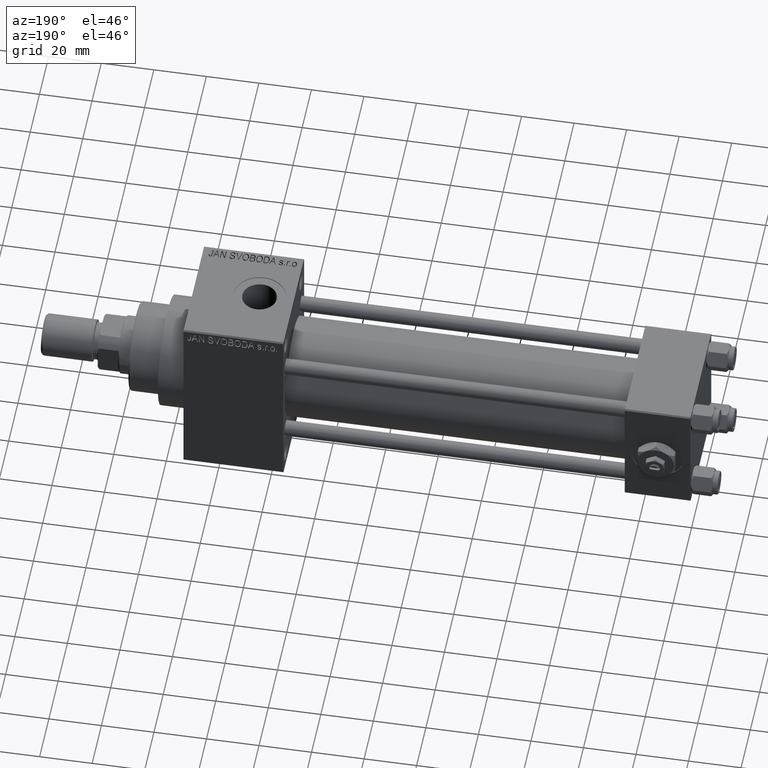
[diagram: clean part render]
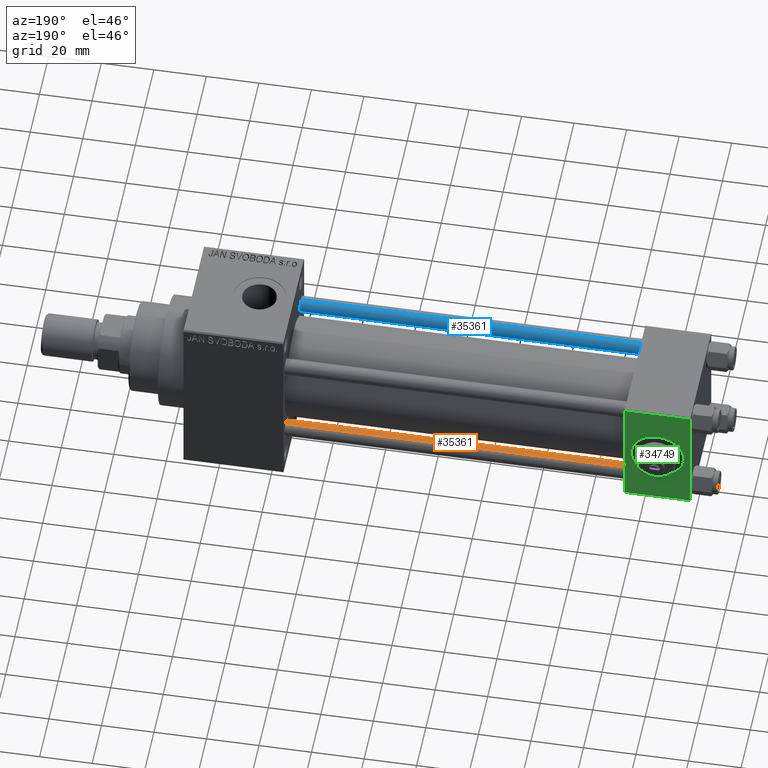
[diagram: same view with three faces highlighted in distinct colors, each labeled with its STEP entity id]
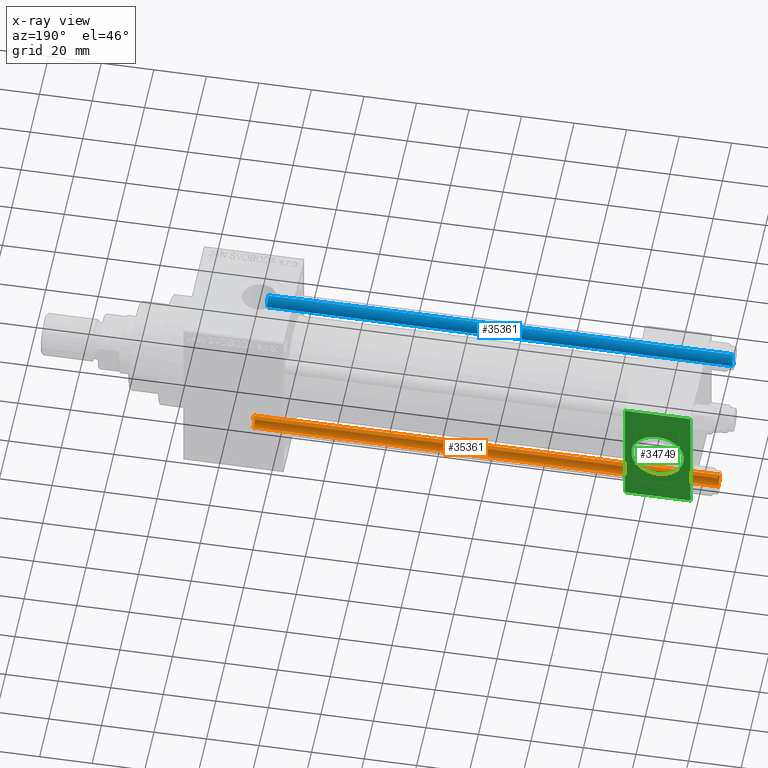
[diagram: x-ray of the same camera — body ghosted, the three highlighted faces saturated]
A machine part, auxiliary view with three faces highlighted in distinct colors.
The next image is the same camera in x-ray (body ghosted, the three faces saturated) — at least one of them is partly hidden behind the body in this view.
Their STEP definitions:

[orange] entity #35361 — the highlighted cylindrical surface (edge-blend (fillet) strip) has radius 3 mm, axis along (1, -0, 0).
#1226 = EDGE_LOOP ( 'NONE', ( #10485, #37507, #44227, #4861 ) ) ;
#2512 = AXIS2_PLACEMENT_3D ( 'NONE', #36728, #13926, #24866 ) ;
#3786 = EDGE_CURVE ( 'NONE', #4447, #36956, #24364, .T. ) ;
#4021 = DIRECTION ( 'NONE',  ( -1.000000000000000000, 0.000000000000000000, 0.000000000000000000 ) ) ;
#4447 = VERTEX_POINT ( 'NONE', #35879 ) ;
#4861 = ORIENTED_EDGE ( 'NONE', *, *, #7016, .T. ) ;
#5319 = VECTOR ( 'NONE', #38501, 1000.000000000000000 ) ;
#7016 = EDGE_CURVE ( 'NONE', #7752, #36956, #11794, .T. ) ;
#7752 = VERTEX_POINT ( 'NONE', #13076 ) ;
#10485 = ORIENTED_EDGE ( 'NONE', *, *, #3786, .F. ) ;
#10764 = DIRECTION ( 'NONE',  ( -0.000000000000000000, -0.000000000000000000, 1.000000000000000000 ) ) ;
#11458 = CARTESIAN_POINT ( 'NONE',  ( 0.000000000000000000, 0.000000000000000000, 178.0000000000000000 ) ) ;
#11794 = CIRCLE ( 'NONE', #14158, 3.000000000000000444 ) ;
#12807 = EDGE_CURVE ( 'NONE', #4447, #39022, #30980, .T. ) ;
#13076 = CARTESIAN_POINT ( 'NONE',  ( -3.000000000000000444, 0.000000000000000000, 0.5000000000000281997 ) ) ;
#13172 = DIRECTION ( 'NONE',  ( -0.000000000000000000, -0.000000000000000000, -1.000000000000000000 ) ) ;
#13926 = DIRECTION ( 'NONE',  ( 0.000000000000000000, 0.000000000000000000, -1.000000000000000000 ) ) ;
#14158 = AXIS2_PLACEMENT_3D ( 'NONE', #44725, #10764, #22400 ) ;
#17388 = LINE ( 'NONE', #27809, #29288 ) ;
#20088 = CARTESIAN_POINT ( 'NONE',  ( -3.000000000000000444, 0.000000000000000000, 177.5000000000000000 ) ) ;
#22400 = DIRECTION ( 'NONE',  ( 1.000000000000000000, 0.000000000000000000, 0.000000000000000000 ) ) ;
#22865 = CYLINDRICAL_SURFACE ( 'NONE', #29042, 3.000000000000000444 ) ;
#24364 = LINE ( 'NONE', #39230, #5319 ) ;
#24866 = DIRECTION ( 'NONE',  ( 1.000000000000000000, 0.000000000000000000, 0.000000000000000000 ) ) ;
#27088 = FACE_OUTER_BOUND ( 'NONE', #1226, .T. ) ;
#27809 = CARTESIAN_POINT ( 'NONE',  ( -3.000000000000000444, 0.000000000000000000, 178.0000000000000000 ) ) ;
#29042 = AXIS2_PLACEMENT_3D ( 'NONE', #11458, #37737, #4021 ) ;
#29288 = VECTOR ( 'NONE', #13172, 1000.000000000000000 ) ;
#30980 = CIRCLE ( 'NONE', #2512, 3.000000000000000444 ) ;
#35361 = ADVANCED_FACE ( 'NONE', ( #27088 ), #22865, .T. ) ;
#35542 = CARTESIAN_POINT ( 'NONE',  ( 3.000000000000000444, 3.673940397442060361E-16, 0.5000000000000281997 ) ) ;
#35879 = CARTESIAN_POINT ( 'NONE',  ( 3.000000000000000444, 3.673940397442060361E-16, 177.5000000000000000 ) ) ;
#36728 = CARTESIAN_POINT ( 'NONE',  ( 0.000000000000000000, 0.000000000000000000, 177.5000000000000000 ) ) ;
#36956 = VERTEX_POINT ( 'NONE', #35542 ) ;
#37507 = ORIENTED_EDGE ( 'NONE', *, *, #12807, .T. ) ;
#37737 = DIRECTION ( 'NONE',  ( -0.000000000000000000, -0.000000000000000000, -1.000000000000000000 ) ) ;
#38501 = DIRECTION ( 'NONE',  ( -0.000000000000000000, -0.000000000000000000, -1.000000000000000000 ) ) ;
#39022 = VERTEX_POINT ( 'NONE', #20088 ) ;
#39230 = CARTESIAN_POINT ( 'NONE',  ( 3.000000000000000444, 3.673940397442060361E-16, 178.0000000000000000 ) ) ;
#42782 = EDGE_CURVE ( 'NONE', #39022, #7752, #17388, .T. ) ;
#44227 = ORIENTED_EDGE ( 'NONE', *, *, #42782, .T. ) ;
#44725 = CARTESIAN_POINT ( 'NONE',  ( 0.000000000000000000, 0.000000000000000000, 0.5000000000000281997 ) ) ;

[blue] entity #35361 — the highlighted cylindrical surface (edge-blend (fillet) strip) has radius 3 mm, axis along (1, 0, 0).
#1226 = EDGE_LOOP ( 'NONE', ( #10485, #37507, #44227, #4861 ) ) ;
#2512 = AXIS2_PLACEMENT_3D ( 'NONE', #36728, #13926, #24866 ) ;
#3786 = EDGE_CURVE ( 'NONE', #4447, #36956, #24364, .T. ) ;
#4021 = DIRECTION ( 'NONE',  ( -1.000000000000000000, 0.000000000000000000, 0.000000000000000000 ) ) ;
#4447 = VERTEX_POINT ( 'NONE', #35879 ) ;
#4861 = ORIENTED_EDGE ( 'NONE', *, *, #7016, .T. ) ;
#5319 = VECTOR ( 'NONE', #38501, 1000.000000000000000 ) ;
#7016 = EDGE_CURVE ( 'NONE', #7752, #36956, #11794, .T. ) ;
#7752 = VERTEX_POINT ( 'NONE', #13076 ) ;
#10485 = ORIENTED_EDGE ( 'NONE', *, *, #3786, .F. ) ;
#10764 = DIRECTION ( 'NONE',  ( -0.000000000000000000, -0.000000000000000000, 1.000000000000000000 ) ) ;
#11458 = CARTESIAN_POINT ( 'NONE',  ( 0.000000000000000000, 0.000000000000000000, 178.0000000000000000 ) ) ;
#11794 = CIRCLE ( 'NONE', #14158, 3.000000000000000444 ) ;
#12807 = EDGE_CURVE ( 'NONE', #4447, #39022, #30980, .T. ) ;
#13076 = CARTESIAN_POINT ( 'NONE',  ( -3.000000000000000444, 0.000000000000000000, 0.5000000000000281997 ) ) ;
#13172 = DIRECTION ( 'NONE',  ( -0.000000000000000000, -0.000000000000000000, -1.000000000000000000 ) ) ;
#13926 = DIRECTION ( 'NONE',  ( 0.000000000000000000, 0.000000000000000000, -1.000000000000000000 ) ) ;
#14158 = AXIS2_PLACEMENT_3D ( 'NONE', #44725, #10764, #22400 ) ;
#17388 = LINE ( 'NONE', #27809, #29288 ) ;
#20088 = CARTESIAN_POINT ( 'NONE',  ( -3.000000000000000444, 0.000000000000000000, 177.5000000000000000 ) ) ;
#22400 = DIRECTION ( 'NONE',  ( 1.000000000000000000, 0.000000000000000000, 0.000000000000000000 ) ) ;
#22865 = CYLINDRICAL_SURFACE ( 'NONE', #29042, 3.000000000000000444 ) ;
#24364 = LINE ( 'NONE', #39230, #5319 ) ;
#24866 = DIRECTION ( 'NONE',  ( 1.000000000000000000, 0.000000000000000000, 0.000000000000000000 ) ) ;
#27088 = FACE_OUTER_BOUND ( 'NONE', #1226, .T. ) ;
#27809 = CARTESIAN_POINT ( 'NONE',  ( -3.000000000000000444, 0.000000000000000000, 178.0000000000000000 ) ) ;
#29042 = AXIS2_PLACEMENT_3D ( 'NONE', #11458, #37737, #4021 ) ;
#29288 = VECTOR ( 'NONE', #13172, 1000.000000000000000 ) ;
#30980 = CIRCLE ( 'NONE', #2512, 3.000000000000000444 ) ;
#35361 = ADVANCED_FACE ( 'NONE', ( #27088 ), #22865, .T. ) ;
#35542 = CARTESIAN_POINT ( 'NONE',  ( 3.000000000000000444, 3.673940397442060361E-16, 0.5000000000000281997 ) ) ;
#35879 = CARTESIAN_POINT ( 'NONE',  ( 3.000000000000000444, 3.673940397442060361E-16, 177.5000000000000000 ) ) ;
#36728 = CARTESIAN_POINT ( 'NONE',  ( 0.000000000000000000, 0.000000000000000000, 177.5000000000000000 ) ) ;
#36956 = VERTEX_POINT ( 'NONE', #35542 ) ;
#37507 = ORIENTED_EDGE ( 'NONE', *, *, #12807, .T. ) ;
#37737 = DIRECTION ( 'NONE',  ( -0.000000000000000000, -0.000000000000000000, -1.000000000000000000 ) ) ;
#38501 = DIRECTION ( 'NONE',  ( -0.000000000000000000, -0.000000000000000000, -1.000000000000000000 ) ) ;
#39022 = VERTEX_POINT ( 'NONE', #20088 ) ;
#39230 = CARTESIAN_POINT ( 'NONE',  ( 3.000000000000000444, 3.673940397442060361E-16, 178.0000000000000000 ) ) ;
#42782 = EDGE_CURVE ( 'NONE', #39022, #7752, #17388, .T. ) ;
#44227 = ORIENTED_EDGE ( 'NONE', *, *, #42782, .T. ) ;
#44725 = CARTESIAN_POINT ( 'NONE',  ( 0.000000000000000000, 0.000000000000000000, 0.5000000000000281997 ) ) ;

[green] entity #34749 — the highlighted planar face has unit normal (0, 1, 0).
#51 = CARTESIAN_POINT ( 'NONE',  ( 25.00000000000000000, 22.50000000000000000, -21.99999999999998224 ) ) ;
#181 = CARTESIAN_POINT ( 'NONE',  ( 0.000000000000000000, 22.50000000000000000, 21.99999999999999645 ) ) ;
#320 = CARTESIAN_POINT ( 'NONE',  ( 12.50000000000000000, 22.50000000000000000, 0.000000000000000000 ) ) ;
#1047 = DIRECTION ( 'NONE',  ( 0.000000000000000000, 0.000000000000000000, 1.000000000000000000 ) ) ;
#1344 = ORIENTED_EDGE ( 'NONE', *, *, #11154, .F. ) ;
#1361 = CARTESIAN_POINT ( 'NONE',  ( 25.00000000000000000, 22.50000000000000000, -21.99999999999996803 ) ) ;
#1431 = ORIENTED_EDGE ( 'NONE', *, *, #48836, .T. ) ;
#2100 = AXIS2_PLACEMENT_3D ( 'NONE', #17396, #2514, #44395 ) ;
#2269 = FACE_BOUND ( 'NONE', #4635, .T. ) ;
#2330 = ORIENTED_EDGE ( 'NONE', *, *, #41530, .T. ) ;
#2501 = DIRECTION ( 'NONE',  ( 0.000000000000000000, 0.000000000000000000, 1.000000000000000000 ) ) ;
#2514 = DIRECTION ( 'NONE',  ( -0.000000000000000000, 1.000000000000000000, 0.000000000000000000 ) ) ;
#2751 = EDGE_CURVE ( 'NONE', #30903, #9548, #36953, .T. ) ;
#3176 = CARTESIAN_POINT ( 'NONE',  ( 12.50000000000000178, 22.50000000000000000, -9.999999999999996447 ) ) ;
#3801 = DIRECTION ( 'NONE',  ( 0.000000000000000000, 0.000000000000000000, -1.000000000000000000 ) ) ;
#4635 = EDGE_LOOP ( 'NONE', ( #15239, #1344 ) ) ;
#4902 = CARTESIAN_POINT ( 'NONE',  ( 25.00000000000000000, 22.50000000000000000, 21.99999999999999645 ) ) ;
#5034 = LINE ( 'NONE', #27600, #15814 ) ;
#5633 = LINE ( 'NONE', #4902, #42808 ) ;
#8503 = LINE ( 'NONE', #45217, #43766 ) ;
#8841 = VERTEX_POINT ( 'NONE', #181 ) ;
#9548 = VERTEX_POINT ( 'NONE', #3176 ) ;
#9956 = FACE_OUTER_BOUND ( 'NONE', #19514, .T. ) ;
#10424 = CARTESIAN_POINT ( 'NONE',  ( 12.50000000000000000, 22.50000000000000000, 0.000000000000000000 ) ) ;
#11154 = EDGE_CURVE ( 'NONE', #9548, #30903, #14267, .T. ) ;
#13704 = ORIENTED_EDGE ( 'NONE', *, *, #19134, .F. ) ;
#13806 = VERTEX_POINT ( 'NONE', #16149 ) ;
#14267 = CIRCLE ( 'NONE', #48328, 9.999999999999996447 ) ;
#14431 = VERTEX_POINT ( 'NONE', #36866 ) ;
#15239 = ORIENTED_EDGE ( 'NONE', *, *, #2751, .F. ) ;
#15652 = LINE ( 'NONE', #51, #26900 ) ;
#15814 = VECTOR ( 'NONE', #46685, 1000.000000000000000 ) ;
#16149 = CARTESIAN_POINT ( 'NONE',  ( 25.00000000000000000, 22.50000000000000000, 21.99999999999999645 ) ) ;
#17396 = CARTESIAN_POINT ( 'NONE',  ( 25.00000000000000000, 22.50000000000000000, 22.50000000000000355 ) ) ;
#19134 = EDGE_CURVE ( 'NONE', #8841, #14431, #8503, .T. ) ;
#19514 = EDGE_LOOP ( 'NONE', ( #2330, #27611, #13704, #1431 ) ) ;
#19881 = DIRECTION ( 'NONE',  ( 0.000000000000000000, 1.000000000000000000, 0.000000000000000000 ) ) ;
#20908 = VERTEX_POINT ( 'NONE', #1361 ) ;
#25082 = PLANE ( 'NONE',  #2100 ) ;
#26900 = VECTOR ( 'NONE', #27312, 1000.000000000000000 ) ;
#27312 = DIRECTION ( 'NONE',  ( -1.000000000000000000, 0.000000000000000000, 0.000000000000000000 ) ) ;
#27600 = CARTESIAN_POINT ( 'NONE',  ( 25.00000000000000000, 22.50000000000000000, 22.50000000000000355 ) ) ;
#27611 = ORIENTED_EDGE ( 'NONE', *, *, #41708, .T. ) ;
#30903 = VERTEX_POINT ( 'NONE', #31816 ) ;
#31816 = CARTESIAN_POINT ( 'NONE',  ( 12.50000000000000000, 22.50000000000000000, 9.999999999999996447 ) ) ;
#34749 = ADVANCED_FACE ( 'NONE', ( #2269, #9956 ), #25082, .T. ) ;
#35618 = DIRECTION ( 'NONE',  ( 1.000000000000000000, 0.000000000000000000, 0.000000000000000000 ) ) ;
#36451 = DIRECTION ( 'NONE',  ( 0.000000000000000000, 1.000000000000000000, 0.000000000000000000 ) ) ;
#36866 = CARTESIAN_POINT ( 'NONE',  ( 0.000000000000000000, 22.50000000000000000, -21.99999999999996803 ) ) ;
#36953 = CIRCLE ( 'NONE', #43306, 9.999999999999996447 ) ;
#41530 = EDGE_CURVE ( 'NONE', #13806, #20908, #5034, .T. ) ;
#41708 = EDGE_CURVE ( 'NONE', #20908, #14431, #15652, .T. ) ;
#42808 = VECTOR ( 'NONE', #35618, 1000.000000000000000 ) ;
#43306 = AXIS2_PLACEMENT_3D ( 'NONE', #10424, #36451, #2501 ) ;
#43766 = VECTOR ( 'NONE', #3801, 1000.000000000000000 ) ;
#44395 = DIRECTION ( 'NONE',  ( 0.000000000000000000, -0.000000000000000000, 1.000000000000000000 ) ) ;
#45217 = CARTESIAN_POINT ( 'NONE',  ( 0.000000000000000000, 22.50000000000000000, 22.50000000000000355 ) ) ;
#46685 = DIRECTION ( 'NONE',  ( 0.000000000000000000, 0.000000000000000000, -1.000000000000000000 ) ) ;
#48328 = AXIS2_PLACEMENT_3D ( 'NONE', #320, #19881, #1047 ) ;
#48836 = EDGE_CURVE ( 'NONE', #8841, #13806, #5633, .T. ) ;